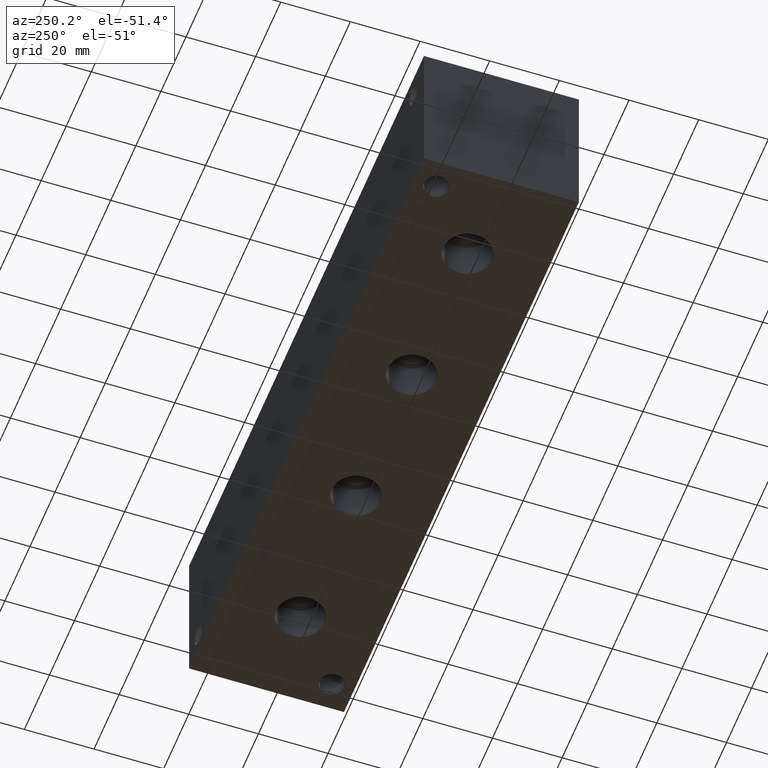
[diagram: clean part render]
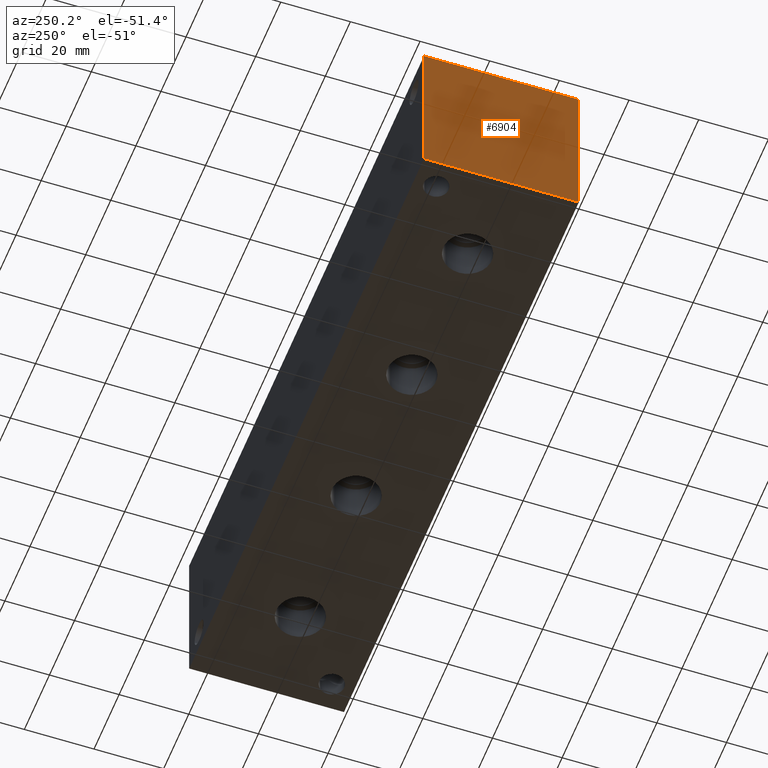
[diagram: same view with one face highlighted and labeled with its STEP entity id]
A machine part, auxiliary view. The second image highlights one B-rep face of the part: STEP entity #6904.
In plain terms, the highlighted planar face has unit normal (-1, 0, 0).
Its self-contained STEP definition (entity closure, byte-faithful):
#410=PLANE('',#7266);
#759=FACE_OUTER_BOUND('',#1152,.T.);
#1152=EDGE_LOOP('',(#6152,#6153,#6154,#6155));
#1459=LINE('',#10447,#2168);
#1869=LINE('',#11588,#2578);
#1870=LINE('',#11589,#2579);
#1871=LINE('',#11590,#2580);
#2168=VECTOR('',#7733,10.);
#2578=VECTOR('',#8661,10.);
#2579=VECTOR('',#8662,10.);
#2580=VECTOR('',#8663,10.);
#3024=VERTEX_POINT('',#10440);
#3027=VERTEX_POINT('',#10445);
#3370=VERTEX_POINT('',#11586);
#3371=VERTEX_POINT('',#11587);
#3803=EDGE_CURVE('',#3027,#3024,#1459,.T.);
#4305=EDGE_CURVE('',#3370,#3371,#1869,.T.);
#4306=EDGE_CURVE('',#3371,#3024,#1870,.T.);
#4307=EDGE_CURVE('',#3370,#3027,#1871,.T.);
#6152=ORIENTED_EDGE('',*,*,#4305,.T.);
#6153=ORIENTED_EDGE('',*,*,#4306,.T.);
#6154=ORIENTED_EDGE('',*,*,#3803,.F.);
#6155=ORIENTED_EDGE('',*,*,#4307,.F.);
#6904=ADVANCED_FACE('',(#759),#410,.T.);
#7266=AXIS2_PLACEMENT_3D('',#11585,#8659,#8660);
#7733=DIRECTION('',(0.,-1.,0.));
#8659=DIRECTION('center_axis',(-1.,0.,0.));
#8660=DIRECTION('ref_axis',(0.,-1.,0.));
#8661=DIRECTION('',(0.,-1.,0.));
#8662=DIRECTION('',(0.,0.,1.));
#8663=DIRECTION('',(0.,0.,1.));
#10440=CARTESIAN_POINT('',(0.,0.,44.45));
#10445=CARTESIAN_POINT('',(0.,44.45,44.45));
#10447=CARTESIAN_POINT('',(0.,44.45,44.45));
#11585=CARTESIAN_POINT('Origin',(0.,44.45,0.));
#11586=CARTESIAN_POINT('',(0.,44.45,0.));
#11587=CARTESIAN_POINT('',(0.,0.,0.));
#11588=CARTESIAN_POINT('',(0.,44.45,0.));
#11589=CARTESIAN_POINT('',(0.,0.,0.));
#11590=CARTESIAN_POINT('',(0.,44.45,0.));